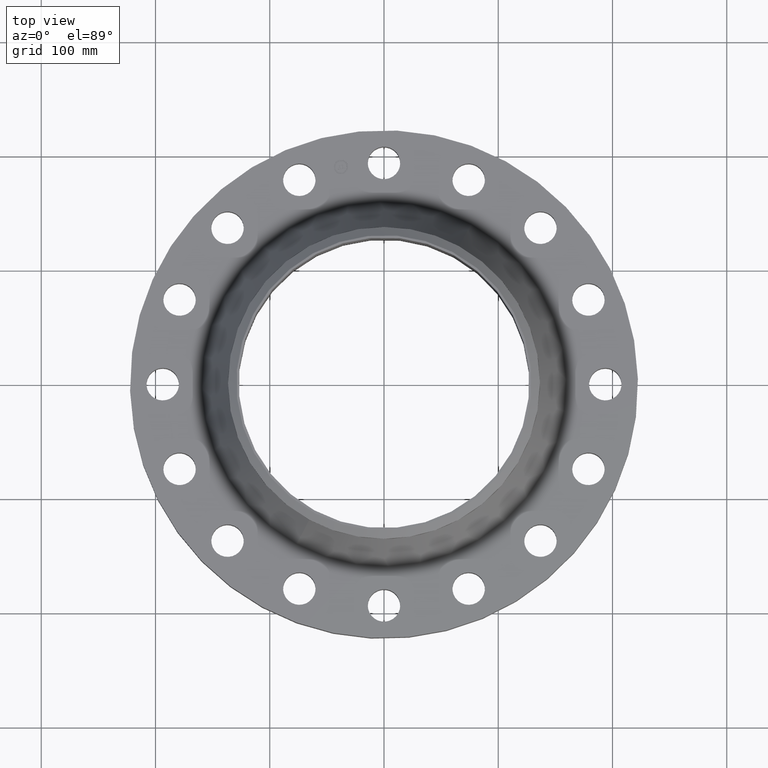
[diagram: clean part render]
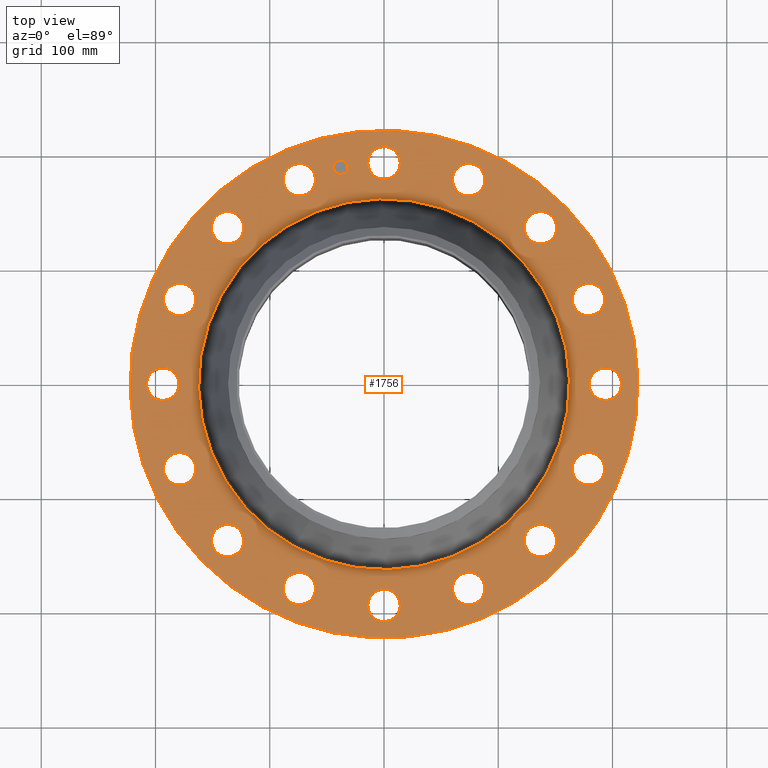
[diagram: same view with one face highlighted and labeled with its STEP entity id]
A machine part, top view. The second image highlights one B-rep face of the part: STEP entity #1756.
In plain terms, the highlighted planar face has unit normal (0, 0, -1).
Its self-contained STEP definition (entity closure, byte-faithful):
#65=AXIS2_PLACEMENT_3D('Circle Axis2P3D',#63,#64,$) ;
#90=AXIS2_PLACEMENT_3D('Circle Axis2P3D',#88,#89,$) ;
#130=AXIS2_PLACEMENT_3D('Circle Axis2P3D',#128,#129,$) ;
#154=AXIS2_PLACEMENT_3D('Circle Axis2P3D',#152,#153,$) ;
#171=AXIS2_PLACEMENT_3D('Circle Axis2P3D',#169,#170,$) ;
#206=AXIS2_PLACEMENT_3D('Circle Axis2P3D',#204,#205,$) ;
#805=AXIS2_PLACEMENT_3D('Circle Axis2P3D',#803,#804,$) ;
#817=AXIS2_PLACEMENT_3D('Circle Axis2P3D',#815,#816,$) ;
#848=AXIS2_PLACEMENT_3D('Circle Axis2P3D',#846,#847,$) ;
#860=AXIS2_PLACEMENT_3D('Circle Axis2P3D',#858,#859,$) ;
#891=AXIS2_PLACEMENT_3D('Circle Axis2P3D',#889,#890,$) ;
#903=AXIS2_PLACEMENT_3D('Circle Axis2P3D',#901,#902,$) ;
#934=AXIS2_PLACEMENT_3D('Circle Axis2P3D',#932,#933,$) ;
#946=AXIS2_PLACEMENT_3D('Circle Axis2P3D',#944,#945,$) ;
#977=AXIS2_PLACEMENT_3D('Circle Axis2P3D',#975,#976,$) ;
#989=AXIS2_PLACEMENT_3D('Circle Axis2P3D',#987,#988,$) ;
#1020=AXIS2_PLACEMENT_3D('Circle Axis2P3D',#1018,#1019,$) ;
#1032=AXIS2_PLACEMENT_3D('Circle Axis2P3D',#1030,#1031,$) ;
#1063=AXIS2_PLACEMENT_3D('Circle Axis2P3D',#1061,#1062,$) ;
#1075=AXIS2_PLACEMENT_3D('Circle Axis2P3D',#1073,#1074,$) ;
#1106=AXIS2_PLACEMENT_3D('Circle Axis2P3D',#1104,#1105,$) ;
#1118=AXIS2_PLACEMENT_3D('Circle Axis2P3D',#1116,#1117,$) ;
#1149=AXIS2_PLACEMENT_3D('Circle Axis2P3D',#1147,#1148,$) ;
#1161=AXIS2_PLACEMENT_3D('Circle Axis2P3D',#1159,#1160,$) ;
#1192=AXIS2_PLACEMENT_3D('Circle Axis2P3D',#1190,#1191,$) ;
#1204=AXIS2_PLACEMENT_3D('Circle Axis2P3D',#1202,#1203,$) ;
#1235=AXIS2_PLACEMENT_3D('Circle Axis2P3D',#1233,#1234,$) ;
#1247=AXIS2_PLACEMENT_3D('Circle Axis2P3D',#1245,#1246,$) ;
#1278=AXIS2_PLACEMENT_3D('Circle Axis2P3D',#1276,#1277,$) ;
#1290=AXIS2_PLACEMENT_3D('Circle Axis2P3D',#1288,#1289,$) ;
#1321=AXIS2_PLACEMENT_3D('Circle Axis2P3D',#1319,#1320,$) ;
#1333=AXIS2_PLACEMENT_3D('Circle Axis2P3D',#1331,#1332,$) ;
#1364=AXIS2_PLACEMENT_3D('Circle Axis2P3D',#1362,#1363,$) ;
#1376=AXIS2_PLACEMENT_3D('Circle Axis2P3D',#1374,#1375,$) ;
#1407=AXIS2_PLACEMENT_3D('Circle Axis2P3D',#1405,#1406,$) ;
#1419=AXIS2_PLACEMENT_3D('Circle Axis2P3D',#1417,#1418,$) ;
#1664=AXIS2_PLACEMENT_3D('Plane Axis2P3D',#1661,#1662,#1663) ;
#1740=AXIS2_PLACEMENT_3D('Circle Axis2P3D',#1738,#1739,$) ;
#1749=AXIS2_PLACEMENT_3D('Circle Axis2P3D',#1747,#1748,$) ;
#46=CARTESIAN_POINT('Vertex',(-0.491446234661,7.89347830165,1.81000000001)) ;
#60=CARTESIAN_POINT('Vertex',(0.491446234661,7.35652169841,1.81000000001)) ;
#63=CARTESIAN_POINT('Axis2P3D Location',(0.,7.62500000003,1.81000000001)) ;
#88=CARTESIAN_POINT('Axis2P3D Location',(0.,7.62500000003,1.81000000001)) ;
#125=CARTESIAN_POINT('Vertex',(-4.1949734628,-7.67884741657,1.81000000001)) ;
#128=CARTESIAN_POINT('Axis2P3D Location',(0.,0.,1.81000000001)) ;
#132=CARTESIAN_POINT('Vertex',(4.1949734628,7.67884741657,1.81000000001)) ;
#152=CARTESIAN_POINT('Axis2P3D Location',(0.,0.,1.81000000001)) ;
#169=CARTESIAN_POINT('Axis2P3D Location',(0.,0.,1.81000000001)) ;
#173=CARTESIAN_POINT('Vertex',(3.06385338151,5.60834599597,1.81000000001)) ;
#175=CARTESIAN_POINT('Vertex',(-3.06385338151,-5.60834599597,1.81000000001)) ;
#204=CARTESIAN_POINT('Axis2P3D Location',(0.,0.,1.81000000001)) ;
#793=CARTESIAN_POINT('Vertex',(-2.56666625224,-7.48069137512,1.81000000001)) ;
#800=CARTESIAN_POINT('Vertex',(-3.26925609135,-6.60847149573,1.81000000001)) ;
#803=CARTESIAN_POINT('Axis2P3D Location',(-2.9179611718,-7.04458143543,1.81000000001)) ;
#815=CARTESIAN_POINT('Axis2P3D Location',(-2.9179611718,-7.04458143543,1.81000000001)) ;
#836=CARTESIAN_POINT('Vertex',(5.23402706913,5.92903699936,1.81000000001)) ;
#843=CARTESIAN_POINT('Vertex',(5.54935134401,4.85434141378,1.81000000001)) ;
#846=CARTESIAN_POINT('Axis2P3D Location',(5.39168920657,5.39168920657,1.81000000001)) ;
#858=CARTESIAN_POINT('Axis2P3D Location',(5.39168920657,5.39168920657,1.81000000001)) ;
#879=CARTESIAN_POINT('Vertex',(-5.23402706913,-5.92903699936,1.81000000001)) ;
#886=CARTESIAN_POINT('Vertex',(-5.54935134401,-4.85434141378,1.81000000001)) ;
#889=CARTESIAN_POINT('Axis2P3D Location',(-5.39168920657,-5.39168920657,1.81000000001)) ;
#901=CARTESIAN_POINT('Axis2P3D Location',(-5.39168920657,-5.39168920657,1.81000000001)) ;
#922=CARTESIAN_POINT('Vertex',(7.10455471131,3.47474048731,1.81000000001)) ;
#929=CARTESIAN_POINT('Vertex',(6.98460815954,2.36118185628,1.81000000001)) ;
#932=CARTESIAN_POINT('Axis2P3D Location',(7.04458143543,2.9179611718,1.81000000001)) ;
#944=CARTESIAN_POINT('Axis2P3D Location',(7.04458143543,2.9179611718,1.81000000001)) ;
#965=CARTESIAN_POINT('Vertex',(-7.10455471131,-3.47474048731,1.81000000001)) ;
#972=CARTESIAN_POINT('Vertex',(-6.98460815954,-2.36118185628,1.81000000001)) ;
#975=CARTESIAN_POINT('Axis2P3D Location',(-7.04458143543,-2.9179611718,1.81000000001)) ;
#987=CARTESIAN_POINT('Axis2P3D Location',(-7.04458143543,-2.9179611718,1.81000000001)) ;
#1008=CARTESIAN_POINT('Vertex',(7.89347830165,0.491446234661,1.81000000001)) ;
#1015=CARTESIAN_POINT('Vertex',(7.35652169841,-0.491446234661,1.81000000001)) ;
#1018=CARTESIAN_POINT('Axis2P3D Location',(7.62500000003,-6.52068346028E-016,1.81000000001)) ;
#1030=CARTESIAN_POINT('Axis2P3D Location',(7.62500000003,-6.52068346028E-016,1.81000000001)) ;
#1051=CARTESIAN_POINT('Vertex',(-7.89347830165,-0.491446234661,1.81000000001)) ;
#1058=CARTESIAN_POINT('Vertex',(-7.35652169841,0.491446234661,1.81000000001)) ;
#1061=CARTESIAN_POINT('Axis2P3D Location',(-7.62500000003,-2.81724838326E-016,1.81000000001)) ;
#1073=CARTESIAN_POINT('Axis2P3D Location',(-7.62500000003,-2.81724838326E-016,1.81000000001)) ;
#1094=CARTESIAN_POINT('Vertex',(7.48069137512,-2.56666625224,1.81000000001)) ;
#1101=CARTESIAN_POINT('Vertex',(6.60847149573,-3.26925609135,1.81000000001)) ;
#1104=CARTESIAN_POINT('Axis2P3D Location',(7.04458143543,-2.9179611718,1.81000000001)) ;
#1116=CARTESIAN_POINT('Axis2P3D Location',(7.04458143543,-2.9179611718,1.81000000001)) ;
#1137=CARTESIAN_POINT('Vertex',(-7.48069137512,2.56666625224,1.81000000001)) ;
#1144=CARTESIAN_POINT('Vertex',(-6.60847149573,3.26925609135,1.81000000001)) ;
#1147=CARTESIAN_POINT('Axis2P3D Location',(-7.04458143543,2.9179611718,1.81000000001)) ;
#1159=CARTESIAN_POINT('Axis2P3D Location',(-7.04458143543,2.9179611718,1.81000000001)) ;
#1180=CARTESIAN_POINT('Vertex',(5.92903699936,-5.23402706913,1.81000000001)) ;
#1187=CARTESIAN_POINT('Vertex',(4.85434141378,-5.54935134401,1.81000000001)) ;
#1190=CARTESIAN_POINT('Axis2P3D Location',(5.39168920657,-5.39168920657,1.81000000001)) ;
#1202=CARTESIAN_POINT('Axis2P3D Location',(5.39168920657,-5.39168920657,1.81000000001)) ;
#1223=CARTESIAN_POINT('Vertex',(-5.92903699936,5.23402706913,1.81000000001)) ;
#1230=CARTESIAN_POINT('Vertex',(-4.85434141378,5.54935134401,1.81000000001)) ;
#1233=CARTESIAN_POINT('Axis2P3D Location',(-5.39168920657,5.39168920657,1.81000000001)) ;
#1245=CARTESIAN_POINT('Axis2P3D Location',(-5.39168920657,5.39168920657,1.81000000001)) ;
#1266=CARTESIAN_POINT('Vertex',(3.47474048731,-7.10455471131,1.81000000001)) ;
#1273=CARTESIAN_POINT('Vertex',(2.36118185628,-6.98460815954,1.81000000001)) ;
#1276=CARTESIAN_POINT('Axis2P3D Location',(2.9179611718,-7.04458143543,1.81000000001)) ;
#1288=CARTESIAN_POINT('Axis2P3D Location',(2.9179611718,-7.04458143543,1.81000000001)) ;
#1309=CARTESIAN_POINT('Vertex',(-3.47474048731,7.10455471131,1.81000000001)) ;
#1316=CARTESIAN_POINT('Vertex',(-2.36118185628,6.98460815954,1.81000000001)) ;
#1319=CARTESIAN_POINT('Axis2P3D Location',(-2.9179611718,7.04458143543,1.81000000001)) ;
#1331=CARTESIAN_POINT('Axis2P3D Location',(-2.9179611718,7.04458143543,1.81000000001)) ;
#1352=CARTESIAN_POINT('Vertex',(0.491446234661,-7.89347830165,1.81000000001)) ;
#1359=CARTESIAN_POINT('Vertex',(-0.491446234661,-7.35652169841,1.81000000001)) ;
#1362=CARTESIAN_POINT('Axis2P3D Location',(9.33793184354E-016,-7.62500000003,1.81000000001)) ;
#1374=CARTESIAN_POINT('Axis2P3D Location',(9.33793184354E-016,-7.62500000003,1.81000000001)) ;
#1395=CARTESIAN_POINT('Vertex',(2.56666625224,7.48069137512,1.81000000001)) ;
#1402=CARTESIAN_POINT('Vertex',(3.26925609135,6.60847149573,1.81000000001)) ;
#1405=CARTESIAN_POINT('Axis2P3D Location',(2.9179611718,7.04458143543,1.81000000001)) ;
#1417=CARTESIAN_POINT('Axis2P3D Location',(2.9179611718,7.04458143543,1.81000000001)) ;
#1661=CARTESIAN_POINT('Axis2P3D Location',(0.,8.75000000003,1.81000000001)) ;
#1738=CARTESIAN_POINT('Axis2P3D Location',(-1.48756370538,7.4784877631,1.81000000001)) ;
#1742=CARTESIAN_POINT('Vertex',(-1.73030806228,7.43020290841,1.81000000001)) ;
#1744=CARTESIAN_POINT('Vertex',(-1.24481934848,7.5267726178,1.81000000001)) ;
#1747=CARTESIAN_POINT('Axis2P3D Location',(-1.48756370538,7.4784877631,1.81000000001)) ;
#64=DIRECTION('Axis2P3D Direction',(0.,-0.,-0.0393700787402)) ;
#89=DIRECTION('Axis2P3D Direction',(0.,-0.,-0.0393700787402)) ;
#129=DIRECTION('Axis2P3D Direction',(0.,0.,-0.0393700787402)) ;
#153=DIRECTION('Axis2P3D Direction',(0.,0.,-0.0393700787402)) ;
#170=DIRECTION('Axis2P3D Direction',(0.,0.,-0.0393700787402)) ;
#205=DIRECTION('Axis2P3D Direction',(0.,0.,-0.0393700787402)) ;
#804=DIRECTION('Axis2P3D Direction',(0.,0.,-0.0393700787402)) ;
#816=DIRECTION('Axis2P3D Direction',(0.,0.,-0.0393700787402)) ;
#847=DIRECTION('Axis2P3D Direction',(0.,-0.,-0.0393700787402)) ;
#859=DIRECTION('Axis2P3D Direction',(0.,-0.,-0.0393700787402)) ;
#890=DIRECTION('Axis2P3D Direction',(0.,0.,-0.0393700787402)) ;
#902=DIRECTION('Axis2P3D Direction',(0.,0.,-0.0393700787402)) ;
#933=DIRECTION('Axis2P3D Direction',(0.,-0.,-0.0393700787402)) ;
#945=DIRECTION('Axis2P3D Direction',(0.,-0.,-0.0393700787402)) ;
#976=DIRECTION('Axis2P3D Direction',(0.,0.,-0.0393700787402)) ;
#988=DIRECTION('Axis2P3D Direction',(0.,0.,-0.0393700787402)) ;
#1019=DIRECTION('Axis2P3D Direction',(0.,-0.,-0.0393700787402)) ;
#1031=DIRECTION('Axis2P3D Direction',(0.,-0.,-0.0393700787402)) ;
#1062=DIRECTION('Axis2P3D Direction',(0.,0.,-0.0393700787402)) ;
#1074=DIRECTION('Axis2P3D Direction',(0.,0.,-0.0393700787402)) ;
#1105=DIRECTION('Axis2P3D Direction',(-0.,0.,-0.0393700787402)) ;
#1117=DIRECTION('Axis2P3D Direction',(-0.,0.,-0.0393700787402)) ;
#1148=DIRECTION('Axis2P3D Direction',(0.,0.,-0.0393700787402)) ;
#1160=DIRECTION('Axis2P3D Direction',(0.,0.,-0.0393700787402)) ;
#1191=DIRECTION('Axis2P3D Direction',(-0.,0.,-0.0393700787402)) ;
#1203=DIRECTION('Axis2P3D Direction',(-0.,0.,-0.0393700787402)) ;
#1234=DIRECTION('Axis2P3D Direction',(0.,0.,-0.0393700787402)) ;
#1246=DIRECTION('Axis2P3D Direction',(0.,0.,-0.0393700787402)) ;
#1277=DIRECTION('Axis2P3D Direction',(-0.,0.,-0.0393700787402)) ;
#1289=DIRECTION('Axis2P3D Direction',(-0.,0.,-0.0393700787402)) ;
#1320=DIRECTION('Axis2P3D Direction',(0.,0.,-0.0393700787402)) ;
#1332=DIRECTION('Axis2P3D Direction',(0.,0.,-0.0393700787402)) ;
#1363=DIRECTION('Axis2P3D Direction',(-0.,0.,-0.0393700787402)) ;
#1375=DIRECTION('Axis2P3D Direction',(-0.,0.,-0.0393700787402)) ;
#1406=DIRECTION('Axis2P3D Direction',(0.,-0.,-0.0393700787402)) ;
#1418=DIRECTION('Axis2P3D Direction',(0.,-0.,-0.0393700787402)) ;
#1662=DIRECTION('Axis2P3D Direction',(0.,0.,-0.0393700787402)) ;
#1663=DIRECTION('Axis2P3D XDirection',(0.0393700787402,0.,0.)) ;
#1739=DIRECTION('Axis2P3D Direction',(0.,0.,-0.0393700787402)) ;
#1748=DIRECTION('Axis2P3D Direction',(0.,0.,-0.0393700787402)) ;
#1667=ORIENTED_EDGE('',*,*,#156,.F.) ;
#1668=ORIENTED_EDGE('',*,*,#134,.F.) ;
#1671=ORIENTED_EDGE('',*,*,#67,.T.) ;
#1672=ORIENTED_EDGE('',*,*,#92,.T.) ;
#1675=ORIENTED_EDGE('',*,*,#208,.T.) ;
#1676=ORIENTED_EDGE('',*,*,#177,.T.) ;
#1679=ORIENTED_EDGE('',*,*,#1421,.T.) ;
#1680=ORIENTED_EDGE('',*,*,#1409,.T.) ;
#1683=ORIENTED_EDGE('',*,*,#862,.T.) ;
#1684=ORIENTED_EDGE('',*,*,#850,.T.) ;
#1687=ORIENTED_EDGE('',*,*,#948,.T.) ;
#1688=ORIENTED_EDGE('',*,*,#936,.T.) ;
#1691=ORIENTED_EDGE('',*,*,#1034,.T.) ;
#1692=ORIENTED_EDGE('',*,*,#1022,.T.) ;
#1695=ORIENTED_EDGE('',*,*,#1120,.T.) ;
#1696=ORIENTED_EDGE('',*,*,#1108,.T.) ;
#1699=ORIENTED_EDGE('',*,*,#1206,.T.) ;
#1700=ORIENTED_EDGE('',*,*,#1194,.T.) ;
#1703=ORIENTED_EDGE('',*,*,#1292,.T.) ;
#1704=ORIENTED_EDGE('',*,*,#1280,.T.) ;
#1707=ORIENTED_EDGE('',*,*,#1378,.T.) ;
#1708=ORIENTED_EDGE('',*,*,#1366,.T.) ;
#1711=ORIENTED_EDGE('',*,*,#819,.T.) ;
#1712=ORIENTED_EDGE('',*,*,#807,.T.) ;
#1715=ORIENTED_EDGE('',*,*,#905,.T.) ;
#1716=ORIENTED_EDGE('',*,*,#893,.T.) ;
#1719=ORIENTED_EDGE('',*,*,#991,.T.) ;
#1720=ORIENTED_EDGE('',*,*,#979,.T.) ;
#1723=ORIENTED_EDGE('',*,*,#1077,.T.) ;
#1724=ORIENTED_EDGE('',*,*,#1065,.T.) ;
#1727=ORIENTED_EDGE('',*,*,#1163,.T.) ;
#1728=ORIENTED_EDGE('',*,*,#1151,.T.) ;
#1731=ORIENTED_EDGE('',*,*,#1249,.T.) ;
#1732=ORIENTED_EDGE('',*,*,#1237,.T.) ;
#1735=ORIENTED_EDGE('',*,*,#1335,.T.) ;
#1736=ORIENTED_EDGE('',*,*,#1323,.T.) ;
#1753=ORIENTED_EDGE('',*,*,#1746,.T.) ;
#1754=ORIENTED_EDGE('',*,*,#1751,.T.) ;
#1673=FACE_BOUND('',#1670,.T.) ;
#1677=FACE_BOUND('',#1674,.T.) ;
#1681=FACE_BOUND('',#1678,.T.) ;
#1685=FACE_BOUND('',#1682,.T.) ;
#1689=FACE_BOUND('',#1686,.T.) ;
#1693=FACE_BOUND('',#1690,.T.) ;
#1697=FACE_BOUND('',#1694,.T.) ;
#1701=FACE_BOUND('',#1698,.T.) ;
#1705=FACE_BOUND('',#1702,.T.) ;
#1709=FACE_BOUND('',#1706,.T.) ;
#1713=FACE_BOUND('',#1710,.T.) ;
#1717=FACE_BOUND('',#1714,.T.) ;
#1721=FACE_BOUND('',#1718,.T.) ;
#1725=FACE_BOUND('',#1722,.T.) ;
#1729=FACE_BOUND('',#1726,.T.) ;
#1733=FACE_BOUND('',#1730,.T.) ;
#1737=FACE_BOUND('',#1734,.T.) ;
#1755=FACE_BOUND('',#1752,.T.) ;
#1756=ADVANCED_FACE('PartBody',(#1669,#1673,#1677,#1681,#1685,#1689,#1693,#1697,#1701,#1705,#1709,#1713,#1717,#1721,#1725,#1729,#1733,#1737,#1755),#1665,.F.) ;
#66=CIRCLE('generated circle',#65,0.560000000002) ;
#91=CIRCLE('generated circle',#90,0.560000000002) ;
#131=CIRCLE('generated circle',#130,8.75000000003) ;
#155=CIRCLE('generated circle',#154,8.75000000003) ;
#172=CIRCLE('generated circle',#171,6.39067620475) ;
#207=CIRCLE('generated circle',#206,6.39067620475) ;
#806=CIRCLE('generated circle',#805,0.560000000002) ;
#818=CIRCLE('generated circle',#817,0.560000000002) ;
#849=CIRCLE('generated circle',#848,0.560000000002) ;
#861=CIRCLE('generated circle',#860,0.560000000002) ;
#892=CIRCLE('generated circle',#891,0.560000000002) ;
#904=CIRCLE('generated circle',#903,0.560000000002) ;
#935=CIRCLE('generated circle',#934,0.560000000002) ;
#947=CIRCLE('generated circle',#946,0.560000000002) ;
#978=CIRCLE('generated circle',#977,0.560000000002) ;
#990=CIRCLE('generated circle',#989,0.560000000002) ;
#1021=CIRCLE('generated circle',#1020,0.560000000002) ;
#1033=CIRCLE('generated circle',#1032,0.560000000002) ;
#1064=CIRCLE('generated circle',#1063,0.560000000002) ;
#1076=CIRCLE('generated circle',#1075,0.560000000002) ;
#1107=CIRCLE('generated circle',#1106,0.560000000002) ;
#1119=CIRCLE('generated circle',#1118,0.560000000002) ;
#1150=CIRCLE('generated circle',#1149,0.560000000002) ;
#1162=CIRCLE('generated circle',#1161,0.560000000002) ;
#1193=CIRCLE('generated circle',#1192,0.560000000002) ;
#1205=CIRCLE('generated circle',#1204,0.560000000002) ;
#1236=CIRCLE('generated circle',#1235,0.560000000002) ;
#1248=CIRCLE('generated circle',#1247,0.560000000002) ;
#1279=CIRCLE('generated circle',#1278,0.560000000002) ;
#1291=CIRCLE('generated circle',#1290,0.560000000002) ;
#1322=CIRCLE('generated circle',#1321,0.560000000002) ;
#1334=CIRCLE('generated circle',#1333,0.560000000002) ;
#1365=CIRCLE('generated circle',#1364,0.560000000002) ;
#1377=CIRCLE('generated circle',#1376,0.560000000002) ;
#1408=CIRCLE('generated circle',#1407,0.560000000002) ;
#1420=CIRCLE('generated circle',#1419,0.560000000002) ;
#1741=CIRCLE('generated circle',#1740,0.247500000001) ;
#1750=CIRCLE('generated circle',#1749,0.247500000001) ;
#67=EDGE_CURVE('',#47,#61,#66,.T.) ;
#92=EDGE_CURVE('',#61,#47,#91,.T.) ;
#134=EDGE_CURVE('',#126,#133,#131,.T.) ;
#156=EDGE_CURVE('',#133,#126,#155,.T.) ;
#177=EDGE_CURVE('',#174,#176,#172,.T.) ;
#208=EDGE_CURVE('',#176,#174,#207,.T.) ;
#807=EDGE_CURVE('',#794,#801,#806,.T.) ;
#819=EDGE_CURVE('',#801,#794,#818,.T.) ;
#850=EDGE_CURVE('',#837,#844,#849,.T.) ;
#862=EDGE_CURVE('',#844,#837,#861,.T.) ;
#893=EDGE_CURVE('',#880,#887,#892,.T.) ;
#905=EDGE_CURVE('',#887,#880,#904,.T.) ;
#936=EDGE_CURVE('',#923,#930,#935,.T.) ;
#948=EDGE_CURVE('',#930,#923,#947,.T.) ;
#979=EDGE_CURVE('',#966,#973,#978,.T.) ;
#991=EDGE_CURVE('',#973,#966,#990,.T.) ;
#1022=EDGE_CURVE('',#1009,#1016,#1021,.T.) ;
#1034=EDGE_CURVE('',#1016,#1009,#1033,.T.) ;
#1065=EDGE_CURVE('',#1052,#1059,#1064,.T.) ;
#1077=EDGE_CURVE('',#1059,#1052,#1076,.T.) ;
#1108=EDGE_CURVE('',#1095,#1102,#1107,.T.) ;
#1120=EDGE_CURVE('',#1102,#1095,#1119,.T.) ;
#1151=EDGE_CURVE('',#1138,#1145,#1150,.T.) ;
#1163=EDGE_CURVE('',#1145,#1138,#1162,.T.) ;
#1194=EDGE_CURVE('',#1181,#1188,#1193,.T.) ;
#1206=EDGE_CURVE('',#1188,#1181,#1205,.T.) ;
#1237=EDGE_CURVE('',#1224,#1231,#1236,.T.) ;
#1249=EDGE_CURVE('',#1231,#1224,#1248,.T.) ;
#1280=EDGE_CURVE('',#1267,#1274,#1279,.T.) ;
#1292=EDGE_CURVE('',#1274,#1267,#1291,.T.) ;
#1323=EDGE_CURVE('',#1310,#1317,#1322,.T.) ;
#1335=EDGE_CURVE('',#1317,#1310,#1334,.T.) ;
#1366=EDGE_CURVE('',#1353,#1360,#1365,.T.) ;
#1378=EDGE_CURVE('',#1360,#1353,#1377,.T.) ;
#1409=EDGE_CURVE('',#1396,#1403,#1408,.T.) ;
#1421=EDGE_CURVE('',#1403,#1396,#1420,.T.) ;
#1746=EDGE_CURVE('',#1743,#1745,#1741,.T.) ;
#1751=EDGE_CURVE('',#1745,#1743,#1750,.T.) ;
#1666=EDGE_LOOP('',(#1667,#1668)) ;
#1670=EDGE_LOOP('',(#1671,#1672)) ;
#1674=EDGE_LOOP('',(#1675,#1676)) ;
#1678=EDGE_LOOP('',(#1679,#1680)) ;
#1682=EDGE_LOOP('',(#1683,#1684)) ;
#1686=EDGE_LOOP('',(#1687,#1688)) ;
#1690=EDGE_LOOP('',(#1691,#1692)) ;
#1694=EDGE_LOOP('',(#1695,#1696)) ;
#1698=EDGE_LOOP('',(#1699,#1700)) ;
#1702=EDGE_LOOP('',(#1703,#1704)) ;
#1706=EDGE_LOOP('',(#1707,#1708)) ;
#1710=EDGE_LOOP('',(#1711,#1712)) ;
#1714=EDGE_LOOP('',(#1715,#1716)) ;
#1718=EDGE_LOOP('',(#1719,#1720)) ;
#1722=EDGE_LOOP('',(#1723,#1724)) ;
#1726=EDGE_LOOP('',(#1727,#1728)) ;
#1730=EDGE_LOOP('',(#1731,#1732)) ;
#1734=EDGE_LOOP('',(#1735,#1736)) ;
#1752=EDGE_LOOP('',(#1753,#1754)) ;
#1669=FACE_OUTER_BOUND('',#1666,.T.) ;
#1665=PLANE('',#1664) ;
#47=VERTEX_POINT('',#46) ;
#61=VERTEX_POINT('',#60) ;
#126=VERTEX_POINT('',#125) ;
#133=VERTEX_POINT('',#132) ;
#174=VERTEX_POINT('',#173) ;
#176=VERTEX_POINT('',#175) ;
#794=VERTEX_POINT('',#793) ;
#801=VERTEX_POINT('',#800) ;
#837=VERTEX_POINT('',#836) ;
#844=VERTEX_POINT('',#843) ;
#880=VERTEX_POINT('',#879) ;
#887=VERTEX_POINT('',#886) ;
#923=VERTEX_POINT('',#922) ;
#930=VERTEX_POINT('',#929) ;
#966=VERTEX_POINT('',#965) ;
#973=VERTEX_POINT('',#972) ;
#1009=VERTEX_POINT('',#1008) ;
#1016=VERTEX_POINT('',#1015) ;
#1052=VERTEX_POINT('',#1051) ;
#1059=VERTEX_POINT('',#1058) ;
#1095=VERTEX_POINT('',#1094) ;
#1102=VERTEX_POINT('',#1101) ;
#1138=VERTEX_POINT('',#1137) ;
#1145=VERTEX_POINT('',#1144) ;
#1181=VERTEX_POINT('',#1180) ;
#1188=VERTEX_POINT('',#1187) ;
#1224=VERTEX_POINT('',#1223) ;
#1231=VERTEX_POINT('',#1230) ;
#1267=VERTEX_POINT('',#1266) ;
#1274=VERTEX_POINT('',#1273) ;
#1310=VERTEX_POINT('',#1309) ;
#1317=VERTEX_POINT('',#1316) ;
#1353=VERTEX_POINT('',#1352) ;
#1360=VERTEX_POINT('',#1359) ;
#1396=VERTEX_POINT('',#1395) ;
#1403=VERTEX_POINT('',#1402) ;
#1743=VERTEX_POINT('',#1742) ;
#1745=VERTEX_POINT('',#1744) ;